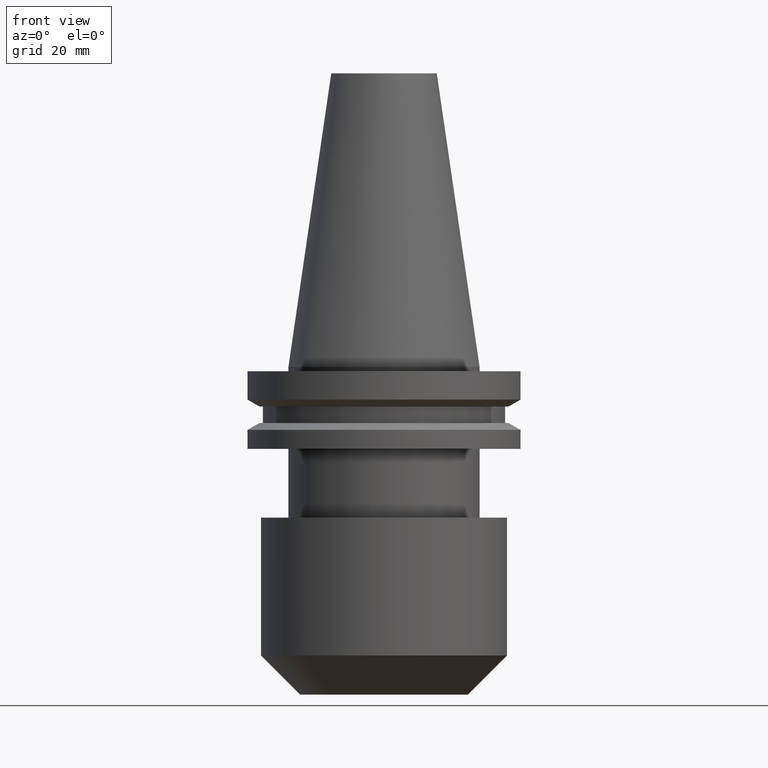
[diagram: clean part render]
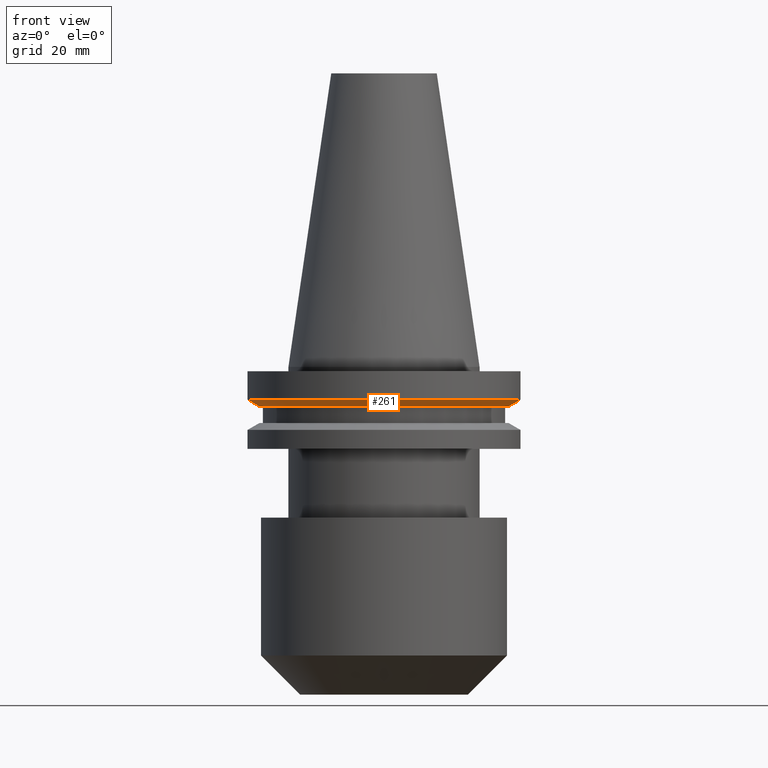
[diagram: same view with one face highlighted and labeled with its STEP entity id]
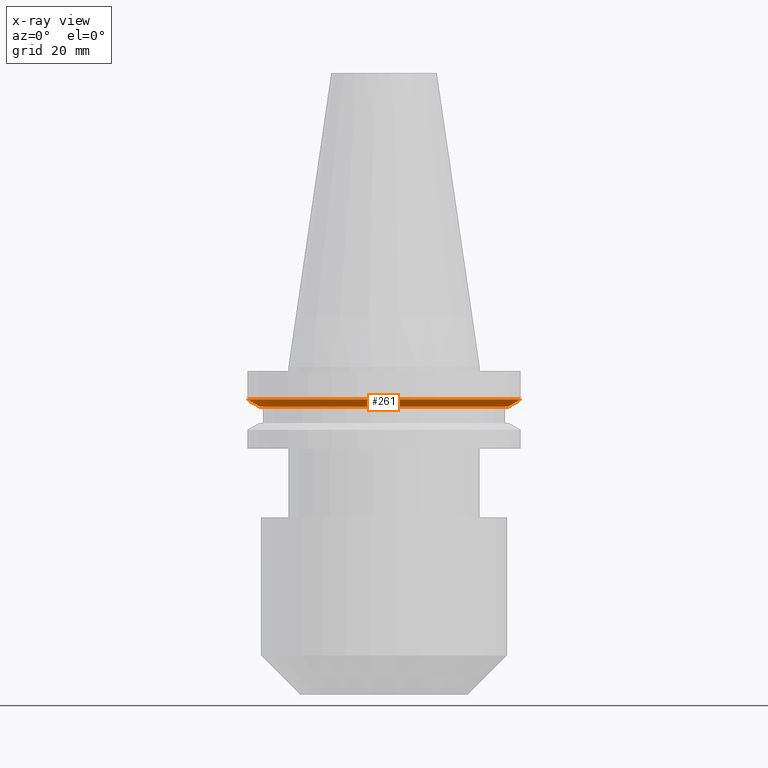
[diagram: x-ray of the same camera — body ghosted, the highlighted face saturated]
A machine part, front view. The second image highlights one B-rep face of the part: STEP entity #261.
The next image is the same camera in x-ray: the body ghosted, the highlighted face saturated — about 0% of this face is hidden behind the body in this view.
In plain terms, the highlighted conical surface has half-angle 60 deg.
Its self-contained STEP definition (entity closure, byte-faithful):
#1 = DIRECTION ( 'NONE',  ( 1.000000000000000000, 0.000000000000000000, 0.000000000000000000 ) ) ;
#6 = DIRECTION ( 'NONE',  ( -0.000000000000000000, -0.000000000000000000, 1.000000000000000000 ) ) ;
#9 = VECTOR ( 'NONE', #96, 1000.000000000000000 ) ;
#19 = FACE_OUTER_BOUND ( 'NONE', #149, .T. ) ;
#52 = AXIS2_PLACEMENT_3D ( 'NONE', #125, #6, #57 ) ;
#57 = DIRECTION ( 'NONE',  ( 1.000000000000000000, 0.000000000000000000, 0.000000000000000000 ) ) ;
#69 = ORIENTED_EDGE ( 'NONE', *, *, #115, .T. ) ;
#79 = DIRECTION ( 'NONE',  ( -0.000000000000000000, -0.000000000000000000, 1.000000000000000000 ) ) ;
#90 = CARTESIAN_POINT ( 'NONE',  ( 28.97919780457007732, 0.000000000000000000, -9.205000000000005400 ) ) ;
#96 = DIRECTION ( 'NONE',  ( 0.8660254037844389297, 0.000000000000000000, 0.4999999999999995004 ) ) ;
#105 = ORIENTED_EDGE ( 'NONE', *, *, #433, .F. ) ;
#115 = EDGE_CURVE ( 'NONE', #570, #696, #560, .T. ) ;
#125 = CARTESIAN_POINT ( 'NONE',  ( 0.000000000000000000, 0.000000000000000000, -7.605276606597335842 ) ) ;
#141 = VERTEX_POINT ( 'NONE', #401 ) ;
#142 = AXIS2_PLACEMENT_3D ( 'NONE', #529, #208, #1 ) ;
#149 = EDGE_LOOP ( 'NONE', ( #105, #69, #437, #557 ) ) ;
#178 = DIRECTION ( 'NONE',  ( -0.8660254037844389297, 1.060575238724907285E-16, 0.4999999999999995004 ) ) ;
#208 = DIRECTION ( 'NONE',  ( -0.000000000000000000, -0.000000000000000000, 1.000000000000000000 ) ) ;
#213 = DIRECTION ( 'NONE',  ( 1.000000000000000000, 0.000000000000000000, 0.000000000000000000 ) ) ;
#241 = CARTESIAN_POINT ( 'NONE',  ( -28.97919780457007732, 3.548928183322474856E-15, -9.205000000000005400 ) ) ;
#261 = ADVANCED_FACE ( 'NONE', ( #19 ), #782, .T. ) ;
#401 = CARTESIAN_POINT ( 'NONE',  ( -31.75000000000000000, 3.888253587292846476E-15, -7.605276606597335842 ) ) ;
#406 = AXIS2_PLACEMENT_3D ( 'NONE', #608, #79, #213 ) ;
#423 = CARTESIAN_POINT ( 'NONE',  ( 31.75000000000000000, 0.000000000000000000, -7.605276606597335842 ) ) ;
#433 = EDGE_CURVE ( 'NONE', #570, #141, #573, .T. ) ;
#437 = ORIENTED_EDGE ( 'NONE', *, *, #693, .T. ) ;
#448 = VECTOR ( 'NONE', #178, 1000.000000000000000 ) ;
#506 = EDGE_CURVE ( 'NONE', #141, #777, #537, .T. ) ;
#529 = CARTESIAN_POINT ( 'NONE',  ( 0.000000000000000000, 0.000000000000000000, -9.205000000000005400 ) ) ;
#537 = CIRCLE ( 'NONE', #52, 31.75000000000000000 ) ;
#541 = CARTESIAN_POINT ( 'NONE',  ( 28.97919780457007732, 0.000000000000000000, -9.205000000000005400 ) ) ;
#557 = ORIENTED_EDGE ( 'NONE', *, *, #506, .F. ) ;
#560 = CIRCLE ( 'NONE', #142, 28.97919780457007732 ) ;
#570 = VERTEX_POINT ( 'NONE', #652 ) ;
#573 = LINE ( 'NONE', #241, #448 ) ;
#608 = CARTESIAN_POINT ( 'NONE',  ( 0.000000000000000000, 0.000000000000000000, -9.205000000000005400 ) ) ;
#652 = CARTESIAN_POINT ( 'NONE',  ( -28.97919780457007732, 3.718590885307660666E-15, -9.205000000000005400 ) ) ;
#683 = LINE ( 'NONE', #90, #9 ) ;
#693 = EDGE_CURVE ( 'NONE', #696, #777, #683, .T. ) ;
#696 = VERTEX_POINT ( 'NONE', #541 ) ;
#777 = VERTEX_POINT ( 'NONE', #423 ) ;
#782 = CONICAL_SURFACE ( 'NONE', #406, 28.97919780457007732, 1.047197551196598297 ) ;